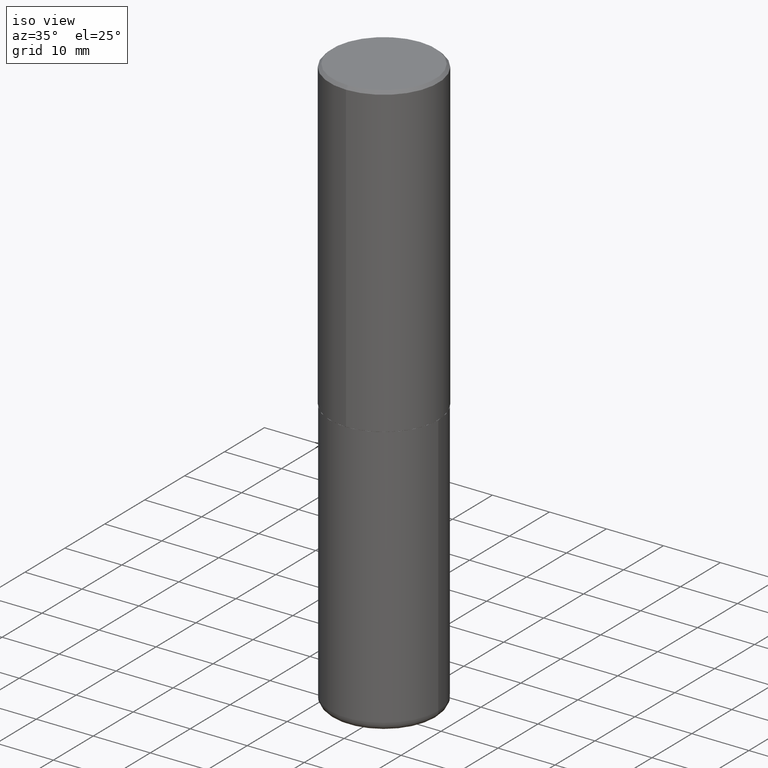
[diagram: clean part render]
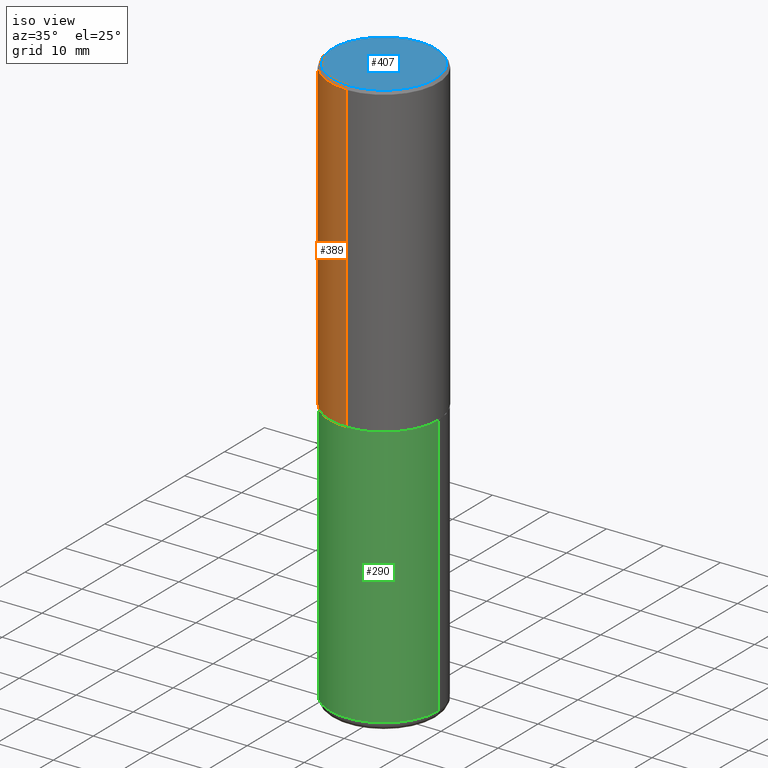
[diagram: same view with three faces highlighted in distinct colors, each labeled with its STEP entity id]
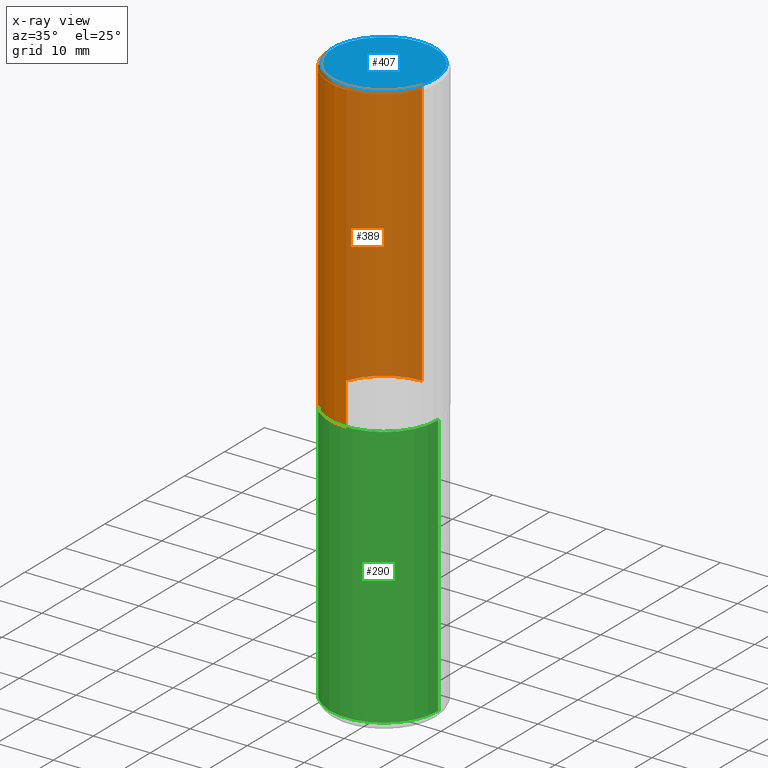
[diagram: x-ray of the same camera — body ghosted, the three highlighted faces saturated]
A machine part, iso view with three faces highlighted in distinct colors.
The next image is the same camera in x-ray (body ghosted, the three faces saturated) — at least one of them is partly hidden behind the body in this view.
Their STEP definitions:

[orange] entity #389 — the highlighted cylindrical surface (partial cylindrical patch) has radius 9.525 mm, axis along (-0, 0, 1).
#14 = DIRECTION ( 'NONE',  ( -6.982962677686265922E-15, -1.000000000000000000, 3.494488891895535640E-15 ) ) ;
#18 = DIRECTION ( 'NONE',  ( -6.982962677686266711E-15, -1.000000000000000000, 3.492725745712018196E-15 ) ) ;
#27 = CARTESIAN_POINT ( 'NONE',  ( 2.664535259100376880E-15, 0.3750000000000002220, -1.309772154642007612E-15 ) ) ;
#62 = ORIENTED_EDGE ( 'NONE', *, *, #311, .T. ) ;
#75 = CIRCLE ( 'NONE', #219, 0.3750000000000002776 ) ;
#105 = EDGE_LOOP ( 'NONE', ( #284, #62, #171, #113 ) ) ;
#107 = DIRECTION ( 'NONE',  ( -2.444599841513017620E-29, 3.492725745712017802E-15, 1.000000000000000000 ) ) ;
#110 = VERTEX_POINT ( 'NONE', #281 ) ;
#113 = ORIENTED_EDGE ( 'NONE', *, *, #351, .F. ) ;
#132 = EDGE_CURVE ( 'NONE', #238, #299, #354, .T. ) ;
#138 = CYLINDRICAL_SURFACE ( 'NONE', #416, 0.3750000000000002220 ) ;
#157 = DIRECTION ( 'NONE',  ( -2.444599841513017620E-29, 3.492725745712018196E-15, 1.000000000000000000 ) ) ;
#166 = CARTESIAN_POINT ( 'NONE',  ( -2.572686749164324336E-15, -0.3750000000000001665, -0.01999999999999877570 ) ) ;
#170 = DIRECTION ( 'NONE',  ( -6.982962677686266711E-15, -1.000000000000000000, 3.642463991552348591E-15 ) ) ;
#171 = ORIENTED_EDGE ( 'NONE', *, *, #175, .T. ) ;
#173 = CARTESIAN_POINT ( 'NONE',  ( 2.618611004132351200E-15, 0.3750000000000000555, -0.02000000000000139513 ) ) ;
#175 = EDGE_CURVE ( 'NONE', #110, #285, #254, .T. ) ;
#219 = AXIS2_PLACEMENT_3D ( 'NONE', #265, #275, #170 ) ;
#238 = VERTEX_POINT ( 'NONE', #404 ) ;
#254 = LINE ( 'NONE', #322, #414 ) ;
#260 = CIRCLE ( 'NONE', #323, 0.3750000000000001110 ) ;
#265 = CARTESIAN_POINT ( 'NONE',  ( 5.192330063373648592E-29, -7.418549483892325607E-15, -2.123999999999999666 ) ) ;
#270 = DIRECTION ( 'NONE',  ( -2.444599841513017620E-29, 3.492725745712017802E-15, 1.000000000000000000 ) ) ;
#272 = FACE_OUTER_BOUND ( 'NONE', #105, .T. ) ;
#275 = DIRECTION ( 'NONE',  ( -2.444599841513017620E-29, 3.492725745712017802E-15, 1.000000000000000000 ) ) ;
#280 = DIRECTION ( 'NONE',  ( -2.444599841513017620E-29, 3.492725745712018196E-15, 1.000000000000000000 ) ) ;
#281 = CARTESIAN_POINT ( 'NONE',  ( -2.618611004132299924E-15, -0.3750000000000077716, -2.123999999999998334 ) ) ;
#282 = VECTOR ( 'NONE', #280, 39.37007874015748143 ) ;
#284 = ORIENTED_EDGE ( 'NONE', *, *, #132, .F. ) ;
#285 = VERTEX_POINT ( 'NONE', #166 ) ;
#299 = VERTEX_POINT ( 'NONE', #173 ) ;
#311 = EDGE_CURVE ( 'NONE', #238, #110, #75, .T. ) ;
#322 = CARTESIAN_POINT ( 'NONE',  ( -2.618611004132351594E-15, -0.3750000000000002220, 1.309772154642007612E-15 ) ) ;
#323 = AXIS2_PLACEMENT_3D ( 'NONE', #375, #107, #14 ) ;
#334 = CARTESIAN_POINT ( 'NONE',  ( 0.000000000000000000, 0.000000000000000000, 0.000000000000000000 ) ) ;
#351 = EDGE_CURVE ( 'NONE', #299, #285, #260, .T. ) ;
#354 = LINE ( 'NONE', #27, #282 ) ;
#375 = CARTESIAN_POINT ( 'NONE',  ( 4.889199683026055945E-31, -6.985451491424065481E-17, -0.02000000000000008715 ) ) ;
#389 = ADVANCED_FACE ( 'NONE', ( #272 ), #138, .T. ) ;
#404 = CARTESIAN_POINT ( 'NONE',  ( 2.664535259100402913E-15, 0.3749999999999928391, -2.124000000000000998 ) ) ;
#414 = VECTOR ( 'NONE', #157, 39.37007874015748143 ) ;
#416 = AXIS2_PLACEMENT_3D ( 'NONE', #334, #270, #18 ) ;

[blue] entity #407 — the highlighted planar face has unit normal (0, -0, -1).
#13 = CIRCLE ( 'NONE', #145, 0.3549999999999999822 ) ;
#20 = FACE_OUTER_BOUND ( 'NONE', #53, .T. ) ;
#35 = DIRECTION ( 'NONE',  ( -6.982962677686265922E-15, -1.000000000000000000, 3.492725745712017407E-15 ) ) ;
#37 = AXIS2_PLACEMENT_3D ( 'NONE', #355, #289, #128 ) ;
#52 = CARTESIAN_POINT ( 'NONE',  ( 2.478951750578624209E-15, 0.3549999999999999822, -1.207682913832788389E-15 ) ) ;
#53 = EDGE_LOOP ( 'NONE', ( #376, #267 ) ) ;
#66 = DIRECTION ( 'NONE',  ( -2.444599841513017620E-29, 3.492725745712017802E-15, 1.000000000000000000 ) ) ;
#80 = VERTEX_POINT ( 'NONE', #121 ) ;
#121 = CARTESIAN_POINT ( 'NONE',  ( -2.504081769186608610E-15, -0.3549999999999999822, 1.304387091517721851E-15 ) ) ;
#128 = DIRECTION ( 'NONE',  ( -6.982962677686265922E-15, -1.000000000000000000, 3.492725745712017407E-15 ) ) ;
#145 = AXIS2_PLACEMENT_3D ( 'NONE', #195, #66, #35 ) ;
#195 = CARTESIAN_POINT ( 'NONE',  ( -1.576020116281570290E-45, 2.251741140787182714E-31, 6.446945178995578068E-17 ) ) ;
#212 = EDGE_CURVE ( 'NONE', #350, #80, #405, .T. ) ;
#228 = EDGE_CURVE ( 'NONE', #80, #350, #13, .T. ) ;
#244 = PLANE ( 'NONE',  #308 ) ;
#267 = ORIENTED_EDGE ( 'NONE', *, *, #228, .T. ) ;
#278 = DIRECTION ( 'NONE',  ( 6.982962677686265922E-15, 1.000000000000000000, -3.492725745712018196E-15 ) ) ;
#289 = DIRECTION ( 'NONE',  ( -2.444599841513017620E-29, 3.492725745712017802E-15, 1.000000000000000000 ) ) ;
#301 = CARTESIAN_POINT ( 'NONE',  ( 2.548781377355487507E-15, 0.3549999999999999822, -1.175448187937810043E-15 ) ) ;
#308 = AXIS2_PLACEMENT_3D ( 'NONE', #52, #312, #278 ) ;
#312 = DIRECTION ( 'NONE',  ( 2.444599841513016780E-29, -3.492725745712018196E-15, -1.000000000000000000 ) ) ;
#350 = VERTEX_POINT ( 'NONE', #301 ) ;
#355 = CARTESIAN_POINT ( 'NONE',  ( -1.576020116281570290E-45, 2.251741140787182714E-31, 6.446945178995578068E-17 ) ) ;
#376 = ORIENTED_EDGE ( 'NONE', *, *, #212, .T. ) ;
#405 = CIRCLE ( 'NONE', #37, 0.3549999999999999822 ) ;
#407 = ADVANCED_FACE ( 'NONE', ( #20 ), #244, .F. ) ;

[green] entity #290 — the highlighted cylindrical surface (partial cylindrical patch) has radius 9.525 mm, axis along (-0, 0, 1).
#23 = VERTEX_POINT ( 'NONE', #250 ) ;
#40 = LINE ( 'NONE', #167, #226 ) ;
#41 = ORIENTED_EDGE ( 'NONE', *, *, #187, .F. ) ;
#47 = DIRECTION ( 'NONE',  ( -2.445468806185136877E-29, 3.491481338843145188E-15, 1.000000000000000000 ) ) ;
#48 = ORIENTED_EDGE ( 'NONE', *, *, #198, .T. ) ;
#58 = CARTESIAN_POINT ( 'NONE',  ( -0.3750000000000000555, -7.923381900941463910E-15, -2.125000000000000000 ) ) ;
#76 = DIRECTION ( 'NONE',  ( 1.000000000000000000, -6.982962677686265922E-15, 4.876176775795935793E-29 ) ) ;
#98 = DIRECTION ( 'NONE',  ( 1.000000000000000000, -6.982962677686266711E-15, 0.000000000000000000 ) ) ;
#109 = DIRECTION ( 'NONE',  ( -2.445468806185136597E-29, 3.491481338843145583E-15, 1.000000000000000000 ) ) ;
#118 = CIRCLE ( 'NONE', #347, 0.3750000000000000555 ) ;
#123 = CARTESIAN_POINT ( 'NONE',  ( -0.3750000000000001110, -1.109190121594161832E-14, -3.939999999999999947 ) ) ;
#136 = CIRCLE ( 'NONE', #329, 0.3750000000000000555 ) ;
#146 = VERTEX_POINT ( 'NONE', #58 ) ;
#155 = DIRECTION ( 'NONE',  ( 1.000000000000000000, -6.982962677686266711E-15, 0.000000000000000000 ) ) ;
#159 = EDGE_CURVE ( 'NONE', #168, #146, #216, .T. ) ;
#167 = CARTESIAN_POINT ( 'NONE',  ( 0.3750000000000000555, -2.618611004132350016E-15, 1.828566290923476203E-29 ) ) ;
#168 = VERTEX_POINT ( 'NONE', #123 ) ;
#187 = EDGE_CURVE ( 'NONE', #146, #209, #118, .T. ) ;
#197 = DIRECTION ( 'NONE',  ( -2.445468806185136597E-29, 3.491481338843145583E-15, 1.000000000000000000 ) ) ;
#198 = EDGE_CURVE ( 'NONE', #168, #23, #136, .T. ) ;
#209 = VERTEX_POINT ( 'NONE', #293 ) ;
#216 = LINE ( 'NONE', #258, #233 ) ;
#226 = VECTOR ( 'NONE', #47, 39.37007874015748143 ) ;
#233 = VECTOR ( 'NONE', #361, 39.37007874015748143 ) ;
#236 = EDGE_CURVE ( 'NONE', #23, #209, #40, .T. ) ;
#241 = CYLINDRICAL_SURFACE ( 'NONE', #268, 0.3750000000000000555 ) ;
#250 = CARTESIAN_POINT ( 'NONE',  ( 0.3750000000000001110, -1.637504747917434403E-14, -3.939999999999999947 ) ) ;
#258 = CARTESIAN_POINT ( 'NONE',  ( -0.3750000000000000555, 2.664535259100376091E-15, -1.844600658845589598E-29 ) ) ;
#268 = AXIS2_PLACEMENT_3D ( 'NONE', #395, #109, #76 ) ;
#290 = ADVANCED_FACE ( 'NONE', ( #369 ), #241, .T. ) ;
#293 = CARTESIAN_POINT ( 'NONE',  ( 0.3750000000000000555, -1.003800884917403364E-14, -2.125000000000000000 ) ) ;
#324 = CARTESIAN_POINT ( 'NONE',  ( 9.635147096369438236E-29, -1.375643647504199401E-14, -3.939999999999999947 ) ) ;
#329 = AXIS2_PLACEMENT_3D ( 'NONE', #324, #197, #155 ) ;
#335 = ORIENTED_EDGE ( 'NONE', *, *, #159, .F. ) ;
#347 = AXIS2_PLACEMENT_3D ( 'NONE', #388, #360, #98 ) ;
#360 = DIRECTION ( 'NONE',  ( -2.445468806185136597E-29, 3.491481338843145583E-15, 1.000000000000000000 ) ) ;
#361 = DIRECTION ( 'NONE',  ( -2.445468806185136877E-29, 3.491481338843145188E-15, 1.000000000000000000 ) ) ;
#369 = FACE_OUTER_BOUND ( 'NONE', #401, .T. ) ;
#370 = ORIENTED_EDGE ( 'NONE', *, *, #236, .T. ) ;
#388 = CARTESIAN_POINT ( 'NONE',  ( 5.196621213143415268E-29, -7.419397845041683624E-15, -2.125000000000000000 ) ) ;
#395 = CARTESIAN_POINT ( 'NONE',  ( 0.000000000000000000, 0.000000000000000000, 0.000000000000000000 ) ) ;
#401 = EDGE_LOOP ( 'NONE', ( #335, #48, #370, #41 ) ) ;